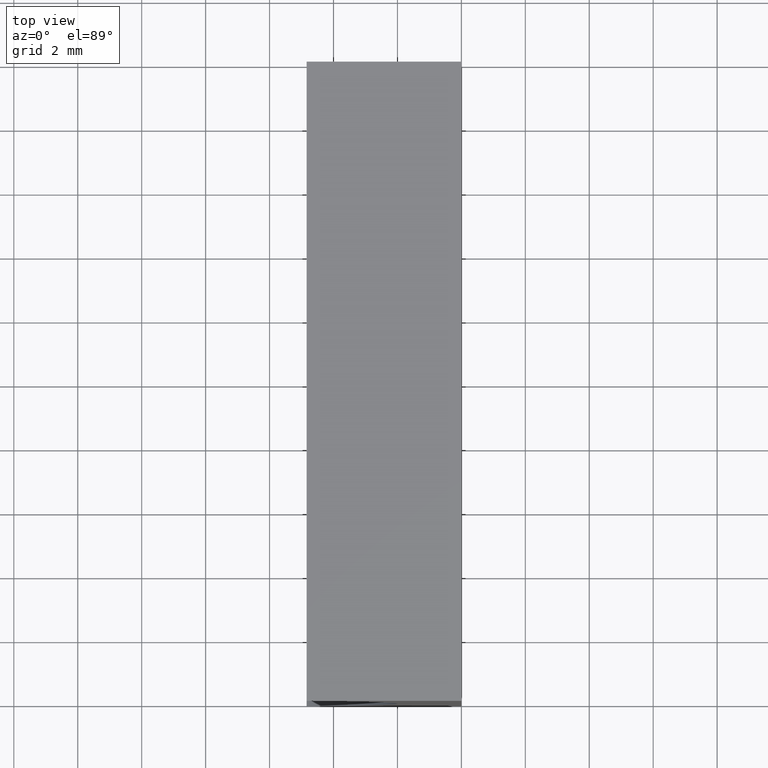
[diagram: clean part render]
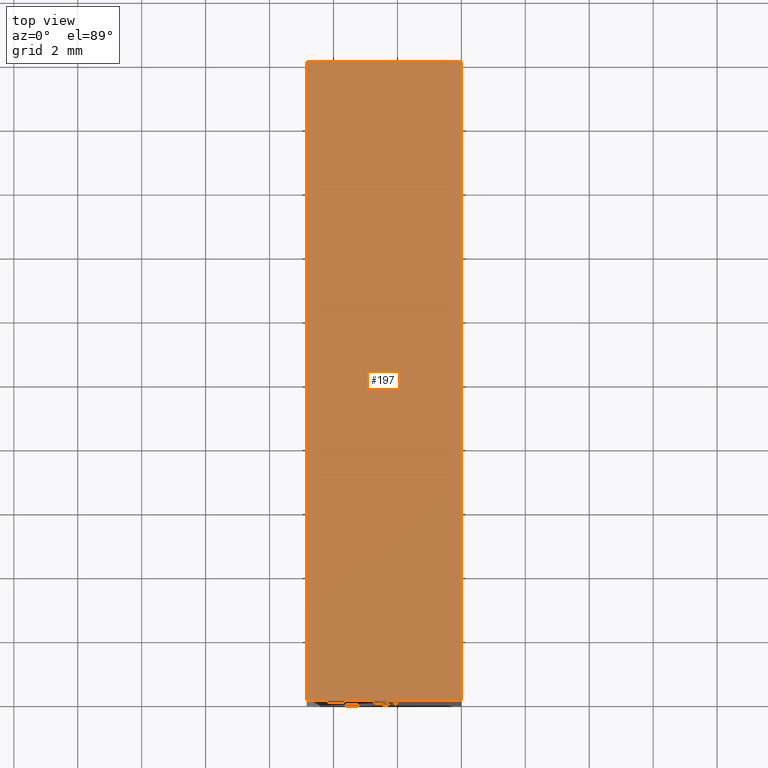
[diagram: same view with one face highlighted and labeled with its STEP entity id]
A machine part, top view. The second image highlights one B-rep face of the part: STEP entity #197.
In plain terms, the highlighted planar face has unit normal (0, 0, -1).
Its self-contained STEP definition (entity closure, byte-faithful):
#14 = EDGE_CURVE ( 'NONE', #24, #46, #174, .T. ) ;
#17 = ORIENTED_EDGE ( 'NONE', *, *, #48, .F. ) ;
#24 = VERTEX_POINT ( 'NONE', #78 ) ;
#25 = CARTESIAN_POINT ( 'NONE',  ( 6.123233995736766300E-016, 0.0000000000000000000, 10.00000000000000000 ) ) ;
#30 = DIRECTION ( 'NONE',  ( -1.000000000000000000, 0.0000000000000000000, -3.583145472076385500E-016 ) ) ;
#32 = CARTESIAN_POINT ( 'NONE',  ( 6.123233995736766300E-016, 20.00000000000000000, 10.00000000000000000 ) ) ;
#46 = VERTEX_POINT ( 'NONE', #25 ) ;
#47 = LINE ( 'NONE', #32, #168 ) ;
#48 = EDGE_CURVE ( 'NONE', #118, #46, #47, .T. ) ;
#53 = ORIENTED_EDGE ( 'NONE', *, *, #135, .T. ) ;
#55 = CARTESIAN_POINT ( 'NONE',  ( 6.123233995736766300E-016, 20.00000000000000000, 10.00000000000000000 ) ) ;
#59 = DIRECTION ( 'NONE',  ( -0.0000000000000000000, -1.000000000000000000, -0.0000000000000000000 ) ) ;
#69 = DIRECTION ( 'NONE',  ( 3.583145472076385500E-016, 0.0000000000000000000, -1.000000000000000000 ) ) ;
#77 = FACE_OUTER_BOUND ( 'NONE', #115, .T. ) ;
#78 = CARTESIAN_POINT ( 'NONE',  ( -4.841342584317565000, 0.0000000000000000000, 9.999999999999998200 ) ) ;
#80 = AXIS2_PLACEMENT_3D ( 'NONE', #108, #69, #30 ) ;
#89 = LINE ( 'NONE', #55, #177 ) ;
#91 = DIRECTION ( 'NONE',  ( 1.000000000000000000, -0.0000000000000000000, 3.583145472076385000E-016 ) ) ;
#92 = CARTESIAN_POINT ( 'NONE',  ( 6.123233995736766300E-016, 20.00000000000000000, 10.00000000000000000 ) ) ;
#96 = CARTESIAN_POINT ( 'NONE',  ( -4.841342584317565000, 20.00000000000000000, 9.999999999999998200 ) ) ;
#101 = PLANE ( 'NONE',  #80 ) ;
#103 = ORIENTED_EDGE ( 'NONE', *, *, #119, .F. ) ;
#108 = CARTESIAN_POINT ( 'NONE',  ( 6.123233995736766300E-016, 20.00000000000000000, 10.00000000000000000 ) ) ;
#110 = DIRECTION ( 'NONE',  ( -0.0000000000000000000, -1.000000000000000000, -0.0000000000000000000 ) ) ;
#112 = VECTOR ( 'NONE', #59, 1000.000000000000000 ) ;
#115 = EDGE_LOOP ( 'NONE', ( #117, #17, #103, #53 ) ) ;
#117 = ORIENTED_EDGE ( 'NONE', *, *, #14, .T. ) ;
#118 = VERTEX_POINT ( 'NONE', #92 ) ;
#119 = EDGE_CURVE ( 'NONE', #165, #118, #89, .T. ) ;
#123 = CARTESIAN_POINT ( 'NONE',  ( 6.123233995736766300E-016, 0.0000000000000000000, 10.00000000000000000 ) ) ;
#124 = DIRECTION ( 'NONE',  ( 1.000000000000000000, -0.0000000000000000000, 3.583145472076385000E-016 ) ) ;
#135 = EDGE_CURVE ( 'NONE', #165, #24, #200, .T. ) ;
#165 = VERTEX_POINT ( 'NONE', #96 ) ;
#168 = VECTOR ( 'NONE', #110, 1000.000000000000000 ) ;
#172 = CARTESIAN_POINT ( 'NONE',  ( -4.841342584317565000, 20.00000000000000000, 9.999999999999998200 ) ) ;
#173 = VECTOR ( 'NONE', #91, 1000.000000000000000 ) ;
#174 = LINE ( 'NONE', #123, #173 ) ;
#177 = VECTOR ( 'NONE', #124, 1000.000000000000000 ) ;
#197 = ADVANCED_FACE ( 'NONE', ( #77 ), #101, .F. ) ;
#200 = LINE ( 'NONE', #172, #112 ) ;